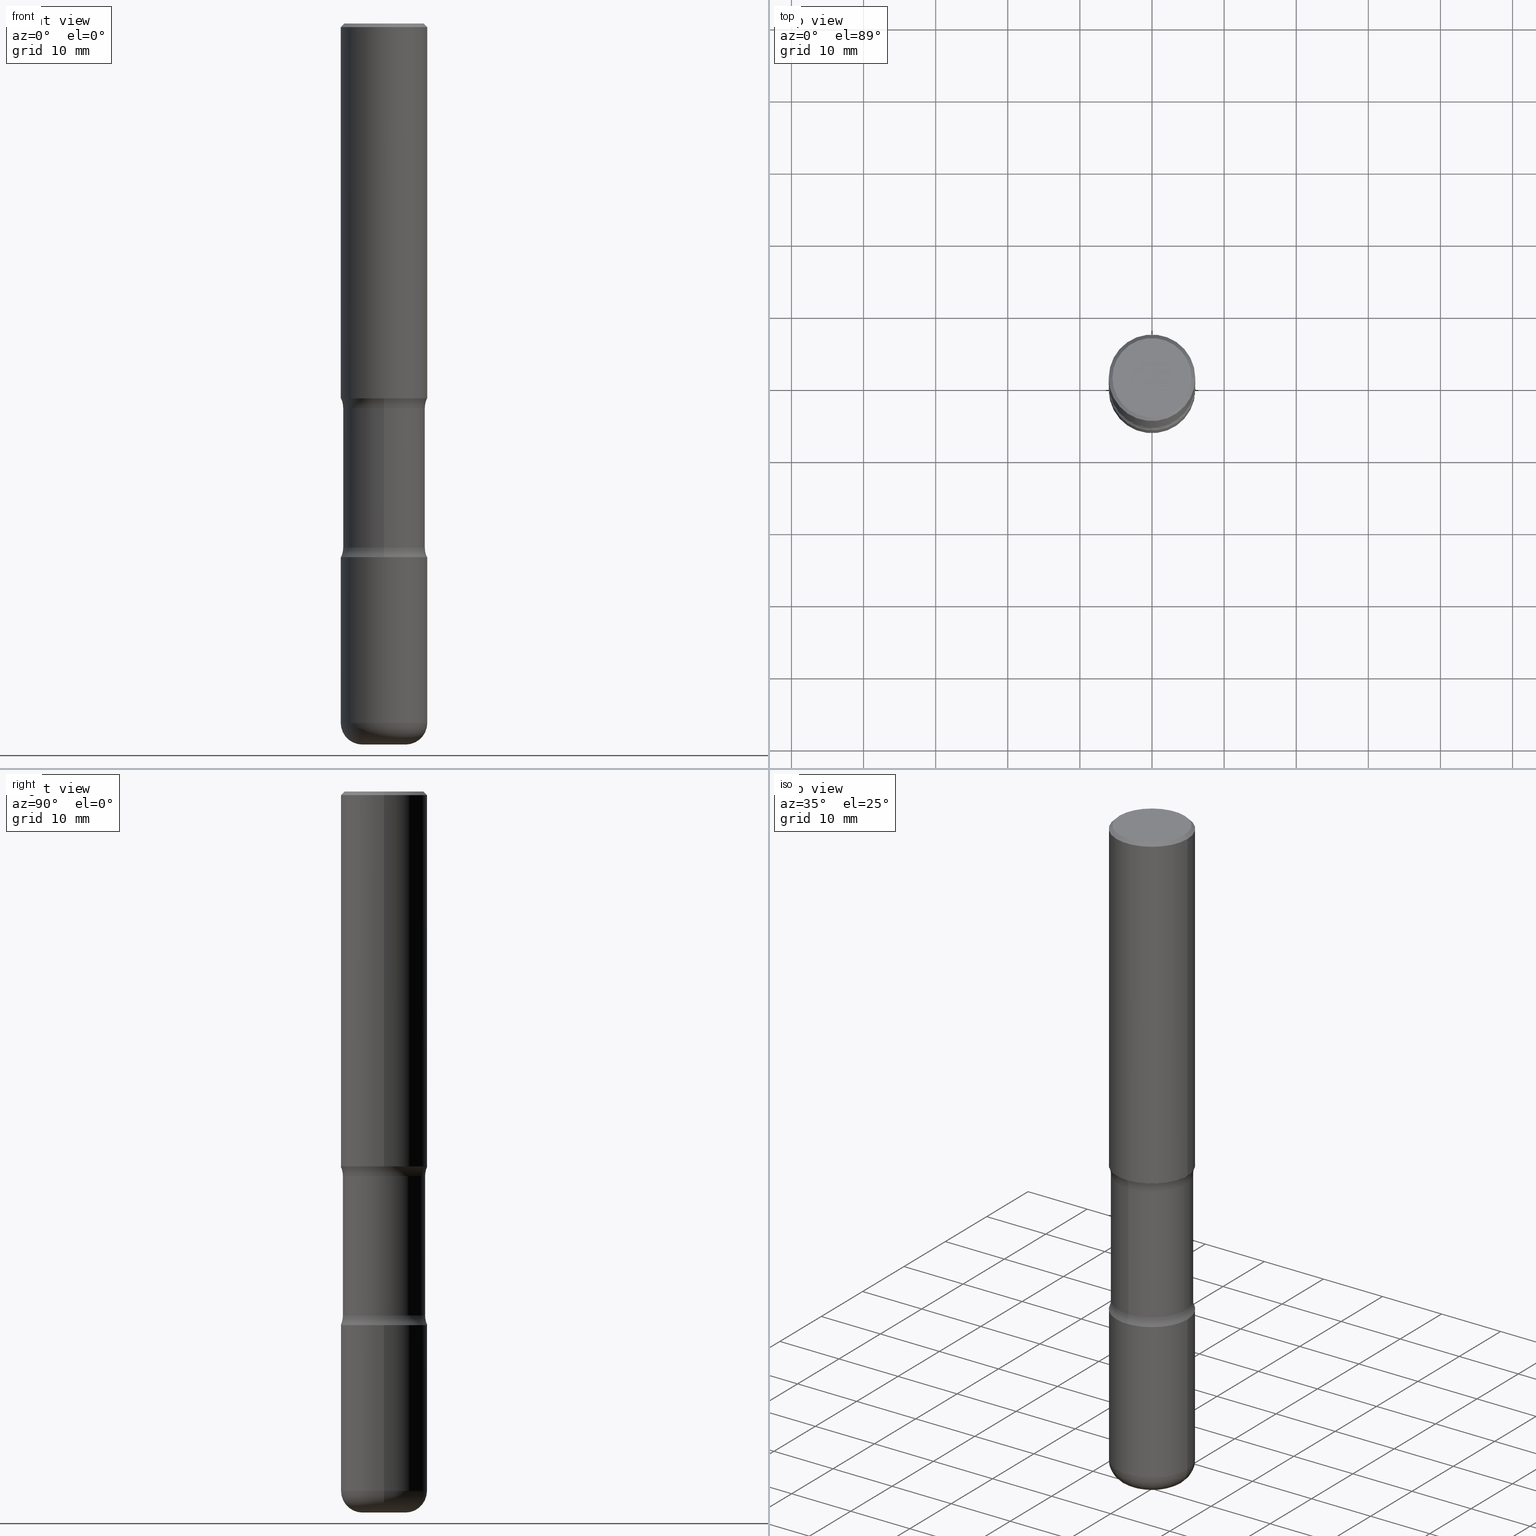
[diagram: canonical four-view strip — front | top / right | iso, engineering-drawing reading convention]
A machine part, canonical four-view strip (front | top / right | iso — engineering-drawing reading convention). The complete STEP part file that produces these views, byte-faithful:
ISO-10303-21;
HEADER;
FILE_DESCRIPTION (( 'STEP AP203' ),
    '1' );
FILE_NAME ('47715.STEP',
    '2024-03-02T07:45:17',
    ( '' ),
    ( '' ),
    'SwSTEP 2.0',
    'SolidWorks 2023',
    '' );
FILE_SCHEMA (( 'CONFIG_CONTROL_DESIGN' ));
ENDSEC;

DATA;
#1 = PERSON_AND_ORGANIZATION_ROLE ( 'classification_officer' ) ;
#2 = CARTESIAN_POINT ( 'NONE',  ( 5.088323202950023588E-29, -7.401163270367792936E-15, -2.100216601173595432 ) ) ;
#3 = COORDINATED_UNIVERSAL_TIME_OFFSET ( 5, 0, .BEHIND. ) ;
#4 = CYLINDRICAL_SURFACE ( 'NONE', #382, 0.2362000000000001598 ) ;
#5 = ADVANCED_FACE ( 'NONE', ( #507 ), #468, .T. ) ;
#6 = VERTEX_POINT ( 'NONE', #469 ) ;
#7 = APPROVAL_STATUS ( 'not_yet_approved' ) ;
#8 = VECTOR ( 'NONE', #560, 39.37007874015748143 ) ;
#9 = CARTESIAN_POINT ( 'NONE',  ( 9.710227154047748282E-29, -1.362793696358492956E-14, -3.937000000000000277 ) ) ;
#10 = VECTOR ( 'NONE', #100, 39.37007874015748143 ) ;
#11 = AXIS2_PLACEMENT_3D ( 'NONE', #131, #94, #520 ) ;
#12 = ORIENTED_EDGE ( 'NONE', *, *, #174, .T. ) ;
#13 = CARTESIAN_POINT ( 'NONE',  ( 4.890937612370289799E-31, -6.982962677686315028E-17, -0.02000000000000006981 ) ) ;
#14 = DIRECTION ( 'NONE',  ( -6.982962677686266711E-15, -1.000000000000000000, 0.000000000000000000 ) ) ;
#15 = DIMENSIONAL_EXPONENTS ( 1.000000000000000000, 0.000000000000000000, 0.000000000000000000, 0.000000000000000000, 0.000000000000000000, 0.000000000000000000, 0.000000000000000000 ) ;
#16 = ORIENTED_EDGE ( 'NONE', *, *, #42, .F. ) ;
#17 = CARTESIAN_POINT ( 'NONE',  ( 1.566976824872848494E-15, 0.2243999999999925499, -2.100216601173596320 ) ) ;
#18 = ORIENTED_EDGE ( 'NONE', *, *, #183, .F. ) ;
#19 = AXIS2_PLACEMENT_3D ( 'NONE', #202, #81, #155 ) ;
#20 = CARTESIAN_POINT ( 'NONE',  ( -0.1181000000000002187, -1.249446711397540556E-14, -3.818899999999998851 ) ) ;
#21 = ADVANCED_FACE ( 'NONE', ( #247 ), #252, .F. ) ;
#22 = ORIENTED_EDGE ( 'NONE', *, *, #238, .T. ) ;
#23 = DIRECTION ( 'NONE',  ( -2.445468806185136597E-29, 3.491481338843145583E-15, 1.000000000000000000 ) ) ;
#24 = ORIENTED_EDGE ( 'NONE', *, *, #271, .F. ) ;
#25 = DIRECTION ( 'NONE',  ( 2.525985086076564115E-29, -3.376177443336566513E-15, -1.000000000000000000 ) ) ;
#26 = ORIENTED_EDGE ( 'NONE', *, *, #494, .T. ) ;
#27 = CIRCLE ( 'NONE', #114, 0.2362000000000002153 ) ;
#28 = EDGE_CURVE ( 'NONE', #104, #309, #499, .T. ) ;
#29 = DIRECTION ( 'NONE',  ( 6.860497997771531562E-15, 1.000000000000000000, 0.000000000000000000 ) ) ;
#30 = ORIENTED_EDGE ( 'NONE', *, *, #340, .T. ) ;
#31 = CC_DESIGN_PERSON_AND_ORGANIZATION_ASSIGNMENT ( #518, #1, ( #158 ) ) ;
#32 = DIRECTION ( 'NONE',  ( 0.000000000000000000, 0.000000000000000000, 1.000000000000000000 ) ) ;
#33 = DIRECTION ( 'NONE',  ( -2.445468806185136597E-29, 3.491481338843145583E-15, 1.000000000000000000 ) ) ;
#34 = APPLICATION_PROTOCOL_DEFINITION ( 'international standard', 'config_control_design', 1994, #375 ) ;
#35 = DIRECTION ( 'NONE',  ( 1.000000000000000000, -6.982962677686266711E-15, 0.000000000000000000 ) ) ;
#36 = VECTOR ( 'NONE', #163, 39.37007874015748143 ) ;
#37 = CARTESIAN_POINT ( 'NONE',  ( 9.339000823940415305E-29, -1.333361808490808613E-14, -3.818899999999998851 ) ) ;
#38 = CARTESIAN_POINT ( 'NONE',  ( -2.397058000421320660E-15, -0.3494000000000072048, -2.100216601173594544 ) ) ;
#39 = DIRECTION ( 'NONE',  ( -2.445468806185136597E-29, 3.491481338843145583E-15, 1.000000000000000000 ) ) ;
#40 = APPROVAL_STATUS ( 'not_yet_approved' ) ;
#41 = DIRECTION ( 'NONE',  ( 1.000000000000000000, -6.982962677686269077E-15, 0.000000000000000000 ) ) ;
#42 = EDGE_CURVE ( 'NONE', #185, #409, #164, .T. ) ;
#43 = AXIS2_PLACEMENT_3D ( 'NONE', #377, #334, #308 ) ;
#44 = CALENDAR_DATE ( 2024, 2, 3 ) ;
#45 = AXIS2_PLACEMENT_3D ( 'NONE', #242, #233, #14 ) ;
#46 = CARTESIAN_POINT ( 'NONE',  ( -1.043851414335219820E-46, 1.490343170380447200E-32, 4.268512490100411279E-18 ) ) ;
#47 = APPROVAL_PERSON_ORGANIZATION ( #176, #386, #385 ) ;
#48 = PRODUCT ( '47715', '47715', '', ( #246 ) ) ;
#49 = ORIENTED_EDGE ( 'NONE', *, *, #276, .T. ) ;
#50 = PLANE ( 'NONE',  #73 ) ;
#51 = ORIENTED_EDGE ( 'NONE', *, *, #174, .F. ) ;
#52 = DATE_AND_TIME ( #266, #292 ) ;
#53 = CARTESIAN_POINT ( 'NONE',  ( 0.2361999999999999933, -1.649375784469496131E-15, 1.151752954443000088E-29 ) ) ;
#54 = PERSON_AND_ORGANIZATION_ROLE ( 'creator' ) ;
#55 = CIRCLE ( 'NONE', #371, 0.2362000000000001321 ) ;
#56 = DIRECTION ( 'NONE',  ( 2.525985086076564115E-29, -3.376177443336566513E-15, -1.000000000000000000 ) ) ;
#57 = AXIS2_PLACEMENT_3D ( 'NONE', #540, #150, #110 ) ;
#58 = LOCAL_TIME ( 2, 45, 17.00000000000000000, #307 ) ;
#59 = ORIENTED_EDGE ( 'NONE', *, *, #340, .F. ) ;
#60 = DIRECTION ( 'NONE',  ( 6.982962677686265922E-15, 1.000000000000000000, -3.652203200085913934E-15 ) ) ;
#61 = CARTESIAN_POINT ( 'NONE',  ( 9.339000823940415305E-29, -1.333361808490808613E-14, -3.818899999999998851 ) ) ;
#62 = EDGE_LOOP ( 'NONE', ( #24, #260, #236, #59 ) ) ;
#63 = DIRECTION ( 'NONE',  ( -1.000000000000000000, 6.982962677686265922E-15, -4.876176775795935793E-29 ) ) ;
#64 = ORIENTED_EDGE ( 'NONE', *, *, #435, .T. ) ;
#65 = CIRCLE ( 'NONE', #500, 0.2362000000000002153 ) ;
#66 = AXIS2_PLACEMENT_3D ( 'NONE', #71, #445, #457 ) ;
#67 = CARTESIAN_POINT ( 'NONE',  ( 0.1181000000000002326, -1.457064992326021168E-14, -3.936999999999998945 ) ) ;
#68 = VERTEX_POINT ( 'NONE', #426 ) ;
#69 = DIRECTION ( 'NONE',  ( 6.982962677686265922E-15, 1.000000000000000000, -3.376177443336566513E-15 ) ) ;
#70 = ORIENTED_EDGE ( 'NONE', *, *, #84, .F. ) ;
#71 = CARTESIAN_POINT ( 'NONE',  ( 5.070539682259229331E-29, -7.426630284172150130E-15, -2.100216601173595432 ) ) ;
#72 = ORIENTED_EDGE ( 'NONE', *, *, #111, .F. ) ;
#73 = AXIS2_PLACEMENT_3D ( 'NONE', #169, #339, #228 ) ;
#74 = DIRECTION ( 'NONE',  ( 2.445468806185136597E-29, -3.491481338843145583E-15, -1.000000000000000000 ) ) ;
#75 = CARTESIAN_POINT ( 'NONE',  ( 0.000000000000000000, 0.000000000000000000, 0.000000000000000000 ) ) ;
#76 = CYLINDRICAL_SURFACE ( 'NONE', #121, 0.2361999999999999933 ) ;
#77 = PLANE ( 'NONE',  #165 ) ;
#78 = ADVANCED_FACE ( 'NONE', ( #124 ), #76, .T. ) ;
#79 = FACE_OUTER_BOUND ( 'NONE', #439, .T. ) ;
#80 = AXIS2_PLACEMENT_3D ( 'NONE', #38, #548, #29 ) ;
#81 = DIRECTION ( 'NONE',  ( -2.445468806185136597E-29, 3.491481338843145583E-15, 1.000000000000000000 ) ) ;
#82 = CARTESIAN_POINT ( 'NONE',  ( 5.006363740022212241E-29, -7.147760596879688202E-15, -2.047200000000000131 ) ) ;
#83 = CARTESIAN_POINT ( 'NONE',  ( 4.890937612370289799E-31, -6.982962677686315028E-17, -0.02000000000000006981 ) ) ;
#84 = EDGE_CURVE ( 'NONE', #6, #327, #553, .T. ) ;
#85 = DATE_TIME_ROLE ( 'classification_date' ) ;
#86 = CARTESIAN_POINT ( 'NONE',  ( 1.566976824872894642E-15, 0.2243999999999863049, -3.937000000000000721 ) ) ;
#87 = PERSON_AND_ORGANIZATION ( #120, #149 ) ;
#88 = CIRCLE ( 'NONE', #11, 0.2362000000000001321 ) ;
#89 = DIRECTION ( 'NONE',  ( 2.525985086076564115E-29, -3.376177443336566513E-15, -1.000000000000000000 ) ) ;
#90 = CALENDAR_DATE ( 2024, 2, 3 ) ;
#91 = LINE ( 'NONE', #53, #383 ) ;
#92 = VERTEX_POINT ( 'NONE', #510 ) ;
#93 = SECURITY_CLASSIFICATION_LEVEL ( 'unclassified' ) ;
#94 = DIRECTION ( 'NONE',  ( -2.445468806185136597E-29, 3.491481338843145583E-15, 1.000000000000000000 ) ) ;
#95 = EDGE_CURVE ( 'NONE', #6, #239, #65, .T. ) ;
#96 = CLOSED_SHELL ( 'NONE', ( #374, #324, #143, #488, #289, #78 ) ) ;
#97 = FACE_OUTER_BOUND ( 'NONE', #278, .T. ) ;
#98 = EDGE_CURVE ( 'NONE', #327, #544, #55, .T. ) ;
#99 = VERTEX_POINT ( 'NONE', #113 ) ;
#100 = DIRECTION ( 'NONE',  ( 2.525985086076564115E-29, -3.376177443336566513E-15, -1.000000000000000000 ) ) ;
#101 = VERTEX_POINT ( 'NONE', #285 ) ;
#102 = ADVANCED_FACE ( 'NONE', ( #473 ), #490, .F. ) ;
#103 = CARTESIAN_POINT ( 'NONE',  ( 1.509716530915769534E-15, 0.2161999999999998368, -7.527240092128373149E-16 ) ) ;
#104 = VERTEX_POINT ( 'NONE', #248 ) ;
#105 = CARTESIAN_POINT ( 'NONE',  ( -1.539495750699834052E-15, -0.2244000000000135608, -3.936999999999999389 ) ) ;
#106 = VERTEX_POINT ( 'NONE', #379 ) ;
#107 = AXIS2_PLACEMENT_3D ( 'NONE', #108, #191, #536 ) ;
#108 = CARTESIAN_POINT ( 'NONE',  ( 0.1181000000000002187, -1.415830597714283439E-14, -3.818899999999998851 ) ) ;
#109 = VERTEX_POINT ( 'NONE', #160 ) ;
#110 = DIRECTION ( 'NONE',  ( -1.000000000000000000, 6.982962677686265922E-15, -4.876176775795935793E-29 ) ) ;
#111 = EDGE_CURVE ( 'NONE', #316, #201, #175, .T. ) ;
#112 = ORIENTED_EDGE ( 'NONE', *, *, #347, .F. ) ;
#113 = CARTESIAN_POINT ( 'NONE',  ( -1.579972688886734072E-15, -0.2244000000000073713, -2.100216601173594544 ) ) ;
#114 = AXIS2_PLACEMENT_3D ( 'NONE', #61, #495, #492 ) ;
#115 = CYLINDRICAL_SURFACE ( 'NONE', #516, 0.2362000000000001598 ) ;
#116 = CARTESIAN_POINT ( 'NONE',  ( 7.124628819939777829E-29, -1.017208173258562247E-14, -2.913400000000000212 ) ) ;
#117 = DIRECTION ( 'NONE',  ( -2.445468806185136597E-29, 3.491481338843145583E-15, 1.000000000000000000 ) ) ;
#118 = ORIENTED_EDGE ( 'NONE', *, *, #125, .F. ) ;
#119 = DIRECTION ( 'NONE',  ( 6.982962677686265922E-15, 1.000000000000000000, -3.376177443336566513E-15 ) ) ;
#120 = PERSON ( 'UNSPECIFIED', 'UNSPECIFIED', 'UNSPECIFIED', ('UNSPECIFIED'), ('UNSPECIFIED'), ('UNSPECIFIED') ) ;
#121 = AXIS2_PLACEMENT_3D ( 'NONE', #336, #33, #329 ) ;
#122 = CONICAL_SURFACE ( 'NONE', #226, 0.2361999999999998823, 0.7853981633974479459 ) ;
#123 = FACE_OUTER_BOUND ( 'NONE', #145, .T. ) ;
#124 = FACE_OUTER_BOUND ( 'NONE', #269, .T. ) ;
#125 = EDGE_CURVE ( 'NONE', #68, #201, #295, .T. ) ;
#126 = DATE_AND_TIME ( #170, #227 ) ;
#127 = CARTESIAN_POINT ( 'NONE',  ( 5.070539682259229331E-29, -7.426630284172150130E-15, -2.100216601173595432 ) ) ;
#128 = LINE ( 'NONE', #300, #362 ) ;
#129 = ORIENTED_EDGE ( 'NONE', *, *, #533, .T. ) ;
#130 = AXIS2_PLACEMENT_3D ( 'NONE', #211, #465, #372 ) ;
#131 = CARTESIAN_POINT ( 'NONE',  ( 5.006363740022212241E-29, -7.147760596879688202E-15, -2.047200000000000131 ) ) ;
#132 = ORIENTED_EDGE ( 'NONE', *, *, #444, .T. ) ;
#133 = APPROVAL_DATE_TIME ( #126, #386 ) ;
#134 = DIRECTION ( 'NONE',  ( 2.525985086076564115E-29, -3.376177443336566513E-15, -1.000000000000000000 ) ) ;
#135 = PERSON_AND_ORGANIZATION_ROLE ( 'creator' ) ;
#136 = DESIGN_CONTEXT ( 'detailed design', #375, 'design' ) ;
#137 = LINE ( 'NONE', #195, #424 ) ;
#138 = AXIS2_PLACEMENT_3D ( 'NONE', #46, #172, #523 ) ;
#139 = EDGE_CURVE ( 'NONE', #309, #185, #344, .T. ) ;
#140 = APPROVAL_PERSON_ORGANIZATION ( #216, #505, #180 ) ;
#141 = FACE_OUTER_BOUND ( 'NONE', #496, .T. ) ;
#142 = ORIENTED_EDGE ( 'NONE', *, *, #221, .T. ) ;
#143 = ADVANCED_FACE ( 'NONE', ( #79 ), #440, .T. ) ;
#144 = PLANE ( 'NONE',  #261 ) ;
#145 = EDGE_LOOP ( 'NONE', ( #273, #151 ) ) ;
#146 = DIRECTION ( 'NONE',  ( 2.525985086076564115E-29, -3.376177443336566513E-15, -1.000000000000000000 ) ) ;
#147 = EDGE_LOOP ( 'NONE', ( #232, #197 ) ) ;
#148 = AXIS2_PLACEMENT_3D ( 'NONE', #366, #208, #370 ) ;
#149 = ORGANIZATION ( 'UNSPECIFIED', 'UNSPECIFIED', '' ) ;
#150 = DIRECTION ( 'NONE',  ( 2.438088387897960049E-29, -3.491481338843145188E-15, -1.000000000000000000 ) ) ;
#151 = ORIENTED_EDGE ( 'NONE', *, *, #533, .F. ) ;
#152 = DIRECTION ( 'NONE',  ( -6.982962677686265922E-15, -1.000000000000000000, 3.376177443336566513E-15 ) ) ;
#153 = MANIFOLD_SOLID_BREP ( 'Body-Move/Copy2[1]', #206 ) ;
#154 = EDGE_LOOP ( 'NONE', ( #400, #179 ) ) ;
#155 = DIRECTION ( 'NONE',  ( 1.000000000000000000, -6.982962677686266711E-15, 4.876217060660159599E-29 ) ) ;
#156 = DIRECTION ( 'NONE',  ( 2.525985086076564115E-29, -3.376177443336566513E-15, -1.000000000000000000 ) ) ;
#157 = TOROIDAL_SURFACE ( 'NONE', #501, 0.1181000000000002187, 0.1180999999999999966 ) ;
#158 = SECURITY_CLASSIFICATION ( '', '', #93 ) ;
#159 = CARTESIAN_POINT ( 'NONE',  ( 4.936620538380257512E-29, -7.247636831167487464E-15, -2.047200000000000131 ) ) ;
#160 = CARTESIAN_POINT ( 'NONE',  ( 1.649375784469546815E-15, 0.2361999999999930266, -2.047200000000001019 ) ) ;
#161 = DIRECTION ( 'NONE',  ( 1.000000000000000000, -6.860497997771530774E-15, 4.842210945089756248E-29 ) ) ;
#162 = PERSON_AND_ORGANIZATION ( #120, #149 ) ;
#163 = DIRECTION ( 'NONE',  ( -2.445468806185136877E-29, 3.491481338843145188E-15, 1.000000000000000000 ) ) ;
#164 = CIRCLE ( 'NONE', #558, 0.2243999999999999606 ) ;
#165 = AXIS2_PLACEMENT_3D ( 'NONE', #376, #287, #152 ) ;
#166 = MANIFOLD_SOLID_BREP ( 'Body-Move/Copy2[2]', #96 ) ;
#167 = COORDINATED_UNIVERSAL_TIME_OFFSET ( 5, 0, .BEHIND. ) ;
#168 = CC_DESIGN_DATE_AND_TIME_ASSIGNMENT ( #338, #395, ( #188 ) ) ;
#169 = CARTESIAN_POINT ( 'NONE',  ( 5.006363740022212241E-29, -7.147760596879688202E-15, -2.047200000000000131 ) ) ;
#170 = CALENDAR_DATE ( 2024, 2, 3 ) ;
#171 = FACE_OUTER_BOUND ( 'NONE', #365, .T. ) ;
#172 = DIRECTION ( 'NONE',  ( -2.445468806185136597E-29, 3.491481338843145583E-15, 1.000000000000000000 ) ) ;
#173 = ORIENTED_EDGE ( 'NONE', *, *, #221, .F. ) ;
#174 = EDGE_CURVE ( 'NONE', #409, #185, #251, .T. ) ;
#175 = CIRCLE ( 'NONE', #450, 0.2361999999999998823 ) ;
#176 = PERSON_AND_ORGANIZATION ( #120, #149 ) ;
#177 = AXIS2_PLACEMENT_3D ( 'NONE', #20, #532, #184 ) ;
#178 = CARTESIAN_POINT ( 'NONE',  ( 4.936620538380257512E-29, -7.247636831167487464E-15, -2.047200000000000131 ) ) ;
#179 = ORIENTED_EDGE ( 'NONE', *, *, #522, .T. ) ;
#180 = APPROVAL_ROLE ( '' ) ;
#181 = DIRECTION ( 'NONE',  ( 2.445468806185136597E-29, -3.491481338843145583E-15, -1.000000000000000000 ) ) ;
#182 = ORIENTED_EDGE ( 'NONE', *, *, #393, .F. ) ;
#183 = EDGE_CURVE ( 'NONE', #458, #101, #243, .T. ) ;
#184 = DIRECTION ( 'NONE',  ( -1.000000000000000000, 7.105427357601005014E-15, 0.000000000000000000 ) ) ;
#185 = VERTEX_POINT ( 'NONE', #306 ) ;
#186 = CIRCLE ( 'NONE', #535, 0.2362000000000002431 ) ;
#187 = DIRECTION ( 'NONE',  ( -2.445468806185136597E-29, 3.491481338843145583E-15, 1.000000000000000000 ) ) ;
#188 = PRODUCT_DEFINITION ( 'UNKNOWN', '', #364, #136 ) ;
#189 = CIRCLE ( 'NONE', #19, 0.2161999999999998368 ) ;
#190 = ORIENTED_EDGE ( 'NONE', *, *, #317, .T. ) ;
#191 = DIRECTION ( 'NONE',  ( -6.982962677686266711E-15, -1.000000000000000000, 3.491481338843145583E-15 ) ) ;
#192 = ORIENTED_EDGE ( 'NONE', *, *, #508, .F. ) ;
#193 = DIRECTION ( 'NONE',  ( -2.445468806185136597E-29, 3.491481338843145583E-15, 1.000000000000000000 ) ) ;
#194 = ORIENTED_EDGE ( 'NONE', *, *, #245, .F. ) ;
#195 = CARTESIAN_POINT ( 'NONE',  ( 0.2361999999999998823, -1.690279253850498179E-15, -0.02000000000000006981 ) ) ;
#196 = AXIS2_PLACEMENT_3D ( 'NONE', #83, #74, #250 ) ;
#197 = ORIENTED_EDGE ( 'NONE', *, *, #268, .T. ) ;
#198 = AXIS2_PLACEMENT_3D ( 'NONE', #82, #331, #205 ) ;
#199 = LOCAL_TIME ( 2, 45, 17.00000000000000000, #3 ) ;
#200 = DIRECTION ( 'NONE',  ( -6.982962677686264344E-15, -1.000000000000000000, 0.000000000000000000 ) ) ;
#201 = VERTEX_POINT ( 'NONE', #487 ) ;
#202 = CARTESIAN_POINT ( 'NONE',  ( -1.043851414335219820E-46, 1.490343170380447200E-32, 4.268512490100411279E-18 ) ) ;
#203 = ADVANCED_FACE ( 'NONE', ( #97 ), #4, .T. ) ;
#204 = CARTESIAN_POINT ( 'NONE',  ( 6.990709676060807691E-29, -9.993088279580958225E-15, -2.860383398826405354 ) ) ;
#205 = DIRECTION ( 'NONE',  ( 1.000000000000000000, -6.982962677686269077E-15, 0.000000000000000000 ) ) ;
#206 = CLOSED_SHELL ( 'NONE', ( #203, #455, #410, #5, #546, #418 ) ) ;
#207 = AXIS2_PLACEMENT_3D ( 'NONE', #262, #396, #430 ) ;
#208 = DIRECTION ( 'NONE',  ( 2.525985086076564115E-29, -3.376177443336566513E-15, -1.000000000000000000 ) ) ;
#209 = DIRECTION ( 'NONE',  ( -2.445468806185136597E-29, 3.491481338843145583E-15, 1.000000000000000000 ) ) ;
#210 = PERSON_AND_ORGANIZATION ( #120, #149 ) ;
#211 = CARTESIAN_POINT ( 'NONE',  ( 5.088323202950023588E-29, -7.401163270367792936E-15, -2.100216601173595432 ) ) ;
#212 = ADVANCED_FACE ( 'NONE', ( #171 ), #341, .T. ) ;
#213 = CARTESIAN_POINT ( 'NONE',  ( 6.990709676060807691E-29, -9.993088279580958225E-15, -2.860383398826405354 ) ) ;
#214 = AXIS2_PLACEMENT_3D ( 'NONE', #304, #519, #259 ) ;
#215 = CIRCLE ( 'NONE', #45, 0.1250000000000000000 ) ;
#216 = PERSON_AND_ORGANIZATION ( #120, #149 ) ;
#217 = DIRECTION ( 'NONE',  ( -1.000000000000000000, 6.982962677686267499E-15, 0.000000000000000000 ) ) ;
#218 = ORIENTED_EDGE ( 'NONE', *, *, #479, .T. ) ;
#219 = PERSON_AND_ORGANIZATION_ROLE ( 'design_supplier' ) ;
#220 = CYLINDRICAL_SURFACE ( 'NONE', #394, 0.2243999999999999329 ) ;
#221 = EDGE_CURVE ( 'NONE', #485, #99, #460, .T. ) ;
#222 = ORIENTED_EDGE ( 'NONE', *, *, #98, .T. ) ;
#223 = FACE_OUTER_BOUND ( 'NONE', #407, .T. ) ;
#224 = ORIENTED_EDGE ( 'NONE', *, *, #245, .T. ) ;
#225 = AXIS2_PLACEMENT_3D ( 'NONE', #513, #416, #119 ) ;
#226 = AXIS2_PLACEMENT_3D ( 'NONE', #13, #181, #217 ) ;
#227 = LOCAL_TIME ( 2, 45, 17.00000000000000000, #296 ) ;
#228 = DIRECTION ( 'NONE',  ( 1.000000000000000000, -6.982962677686265922E-15, 4.876176775795935793E-29 ) ) ;
#229 = ADVANCED_FACE ( 'NONE', ( #342 ), #220, .T. ) ;
#230 = LINE ( 'NONE', #86, #353 ) ;
#231 = CARTESIAN_POINT ( 'NONE',  ( 9.339000823940415305E-29, -1.333361808490808613E-14, -3.818899999999998851 ) ) ;
#232 = ORIENTED_EDGE ( 'NONE', *, *, #28, .T. ) ;
#233 = DIRECTION ( 'NONE',  ( -1.000000000000000000, 6.982962677686265922E-15, -4.883557194083112340E-29 ) ) ;
#234 = CIRCLE ( 'NONE', #80, 0.1249999999999999029 ) ;
#235 = CC_DESIGN_APPROVAL ( #505, ( #364 ) ) ;
#236 = ORIENTED_EDGE ( 'NONE', *, *, #84, .T. ) ;
#237 = DIRECTION ( 'NONE',  ( -1.000000000000000000, 6.982962677686265922E-15, -4.876176775795935793E-29 ) ) ;
#238 = EDGE_CURVE ( 'NONE', #109, #325, #186, .T. ) ;
#239 = VERTEX_POINT ( 'NONE', #484 ) ;
#240 = FACE_OUTER_BOUND ( 'NONE', #482, .T. ) ;
#241 = EDGE_LOOP ( 'NONE', ( #541, #218, #275, #263 ) ) ;
#242 = CARTESIAN_POINT ( 'NONE',  ( 2.439847159583651160E-15, 0.3493999999999899964, -2.860383398826406243 ) ) ;
#243 = CIRCLE ( 'NONE', #43, 0.1181000000000002326 ) ;
#244 = EDGE_LOOP ( 'NONE', ( #142, #443, #51, #506 ) ) ;
#245 = EDGE_CURVE ( 'NONE', #280, #68, #88, .T. ) ;
#246 = MECHANICAL_CONTEXT ( 'NONE', #315, 'mechanical' ) ;
#247 = FACE_OUTER_BOUND ( 'NONE', #498, .T. ) ;
#248 = CARTESIAN_POINT ( 'NONE',  ( 1.649375784469567917E-15, 0.2361999999999899458, -2.913400000000000656 ) ) ;
#249 =( CONVERSION_BASED_UNIT ( 'INCH', #466 ) LENGTH_UNIT ( ) NAMED_UNIT ( #15 ) );
#250 = DIRECTION ( 'NONE',  ( -1.000000000000000000, 6.982962677686267499E-15, 0.000000000000000000 ) ) ;
#251 = CIRCLE ( 'NONE', #514, 0.2243999999999999606 ) ;
#252 = TOROIDAL_SURFACE ( 'NONE', #225, 0.3493999999999999884, 0.1250000000000000000 ) ;
#253 = AXIS2_PLACEMENT_3D ( 'NONE', #272, #399, #314 ) ;
#254 = DIRECTION ( 'NONE',  ( 1.000000000000000000, -6.982962677686266711E-15, 4.876176775795936353E-29 ) ) ;
#255 = CARTESIAN_POINT ( 'NONE',  ( 7.124628819939777829E-29, -1.017208173258562247E-14, -2.913400000000000212 ) ) ;
#256 = EDGE_CURVE ( 'NONE', #106, #92, #320, .T. ) ;
#257 = DATE_AND_TIME ( #427, #199 ) ;
#258 = DIRECTION ( 'NONE',  ( 2.525985086076564115E-29, -3.376177443336566513E-15, -1.000000000000000000 ) ) ;
#259 = DIRECTION ( 'NONE',  ( 6.982962677686265922E-15, 1.000000000000000000, -2.434802133390609815E-15 ) ) ;
#260 = ORIENTED_EDGE ( 'NONE', *, *, #464, .T. ) ;
#261 = AXIS2_PLACEMENT_3D ( 'NONE', #319, #356, #63 ) ;
#262 = CARTESIAN_POINT ( 'NONE',  ( 7.124628819939777829E-29, -1.017208173258562247E-14, -2.913400000000000212 ) ) ;
#263 = ORIENTED_EDGE ( 'NONE', *, *, #464, .F. ) ;
#264 = DIRECTION ( 'NONE',  ( 6.982962677686265922E-15, 1.000000000000000000, -3.469747663417773452E-15 ) ) ;
#265 = ORIENTED_EDGE ( 'NONE', *, *, #298, .T. ) ;
#266 = CALENDAR_DATE ( 2024, 2, 3 ) ;
#267 = CARTESIAN_POINT ( 'NONE',  ( 0.000000000000000000, 0.000000000000000000, 0.000000000000000000 ) ) ;
#268 = EDGE_CURVE ( 'NONE', #309, #104, #310, .T. ) ;
#269 = EDGE_LOOP ( 'NONE', ( #118, #355, #190, #112 ) ) ;
#270 = DIRECTION ( 'NONE',  ( -2.445468806185136877E-29, 3.491481338843145188E-15, 1.000000000000000000 ) ) ;
#271 = EDGE_CURVE ( 'NONE', #239, #544, #437, .T. ) ;
#272 = CARTESIAN_POINT ( 'NONE',  ( 9.627810689950880306E-29, -1.374596203102546026E-14, -3.936999999999998945 ) ) ;
#273 = ORIENTED_EDGE ( 'NONE', *, *, #238, .F. ) ;
#274 = FACE_OUTER_BOUND ( 'NONE', #392, .T. ) ;
#275 = ORIENTED_EDGE ( 'NONE', *, *, #358, .T. ) ;
#276 = EDGE_CURVE ( 'NONE', #485, #409, #230, .T. ) ;
#277 = PLANE ( 'NONE',  #441 ) ;
#278 = EDGE_LOOP ( 'NONE', ( #343, #446, #351, #70 ) ) ;
#279 = CARTESIAN_POINT ( 'NONE',  ( 4.890937612370289799E-31, -6.982962677686315028E-17, -0.02000000000000006981 ) ) ;
#280 = VERTEX_POINT ( 'NONE', #297 ) ;
#281 = CARTESIAN_POINT ( 'NONE',  ( 0.000000000000000000, 0.000000000000000000, 0.000000000000000000 ) ) ;
#282 = ORIENTED_EDGE ( 'NONE', *, *, #508, .T. ) ;
#283 = AXIS2_PLACEMENT_3D ( 'NONE', #279, #323, #312 ) ;
#284 = PRODUCT_RELATED_PRODUCT_CATEGORY ( 'detail', '', ( #48 ) ) ;
#285 = CARTESIAN_POINT ( 'NONE',  ( -0.1181000000000002326, -1.228106360156775550E-14, -3.936999999999998945 ) ) ;
#286 = UNCERTAINTY_MEASURE_WITH_UNIT (LENGTH_MEASURE( 1.000000000000000082E-05 ), #249, 'distance_accuracy_value', 'NONE');
#287 = DIRECTION ( 'NONE',  ( -2.525985086076564115E-29, 3.376177443336566513E-15, 1.000000000000000000 ) ) ;
#288 = DIRECTION ( 'NONE',  ( 1.000000000000000000, -6.982962677686267499E-15, 0.000000000000000000 ) ) ;
#289 = ADVANCED_FACE ( 'NONE', ( #397 ), #50, .F. ) ;
#290 = DIRECTION ( 'NONE',  ( 6.982962677686265922E-15, 1.000000000000000000, -2.434802133390609421E-15 ) ) ;
#291 = AXIS2_PLACEMENT_3D ( 'NONE', #2, #25, #69 ) ;
#292 = LOCAL_TIME ( 2, 45, 17.00000000000000000, #167 ) ;
#293 = DIRECTION ( 'NONE',  ( 6.982962677686265922E-15, 1.000000000000000000, -3.469747663417773452E-15 ) ) ;
#294 = CC_DESIGN_PERSON_AND_ORGANIZATION_ASSIGNMENT ( #529, #219, ( #364 ) ) ;
#295 = LINE ( 'NONE', #369, #36 ) ;
#296 = COORDINATED_UNIVERSAL_TIME_OFFSET ( 5, 0, .BEHIND. ) ;
#297 = CARTESIAN_POINT ( 'NONE',  ( 0.2362000000000001321, -8.797136381349186305E-15, -2.047200000000000131 ) ) ;
#298 = EDGE_CURVE ( 'NONE', #106, #201, #128, .T. ) ;
#299 = COORDINATED_UNIVERSAL_TIME_OFFSET ( 5, 0, .BEHIND. ) ;
#300 = CARTESIAN_POINT ( 'NONE',  ( -0.2361999999999998823, 1.579546157692632438E-15, -0.02000000000000006981 ) ) ;
#301 = ORIENTED_EDGE ( 'NONE', *, *, #380, .F. ) ;
#302 = CLOSED_SHELL ( 'NONE', ( #229, #378, #102, #333, #527, #555, #21, #212 ) ) ;
#303 = CIRCLE ( 'NONE', #198, 0.2362000000000001321 ) ;
#304 = CARTESIAN_POINT ( 'NONE',  ( 9.710227154047748282E-29, -1.362793696358492956E-14, -3.937000000000000277 ) ) ;
#305 = APPROVAL_DATE_TIME ( #52, #414 ) ;
#306 = CARTESIAN_POINT ( 'NONE',  ( -1.579972688886713168E-15, -0.2244000000000099804, -2.860383398826404466 ) ) ;
#307 = COORDINATED_UNIVERSAL_TIME_OFFSET ( 5, 0, .BEHIND. ) ;
#308 = DIRECTION ( 'NONE',  ( 1.000000000000000000, -6.982962677686275388E-15, 0.000000000000000000 ) ) ;
#309 = VERTEX_POINT ( 'NONE', #389 ) ;
#310 = CIRCLE ( 'NONE', #207, 0.2362000000000001321 ) ;
#311 = EDGE_LOOP ( 'NONE', ( #194, #549 ) ) ;
#312 = DIRECTION ( 'NONE',  ( 1.000000000000000000, -6.982962677686267499E-15, 0.000000000000000000 ) ) ;
#313 = ORIENTED_EDGE ( 'NONE', *, *, #95, .F. ) ;
#314 = DIRECTION ( 'NONE',  ( 1.000000000000000000, -6.982962677686275388E-15, 0.000000000000000000 ) ) ;
#315 = APPLICATION_CONTEXT ( 'configuration controlled 3d designs of mechanical parts and assemblies' ) ;
#316 = VERTEX_POINT ( 'NONE', #433 ) ;
#317 = EDGE_CURVE ( 'NONE', #280, #316, #91, .T. ) ;
#318 = AXIS2_PLACEMENT_3D ( 'NONE', #415, #551, #200 ) ;
#319 = CARTESIAN_POINT ( 'NONE',  ( 7.124628819939777829E-29, -1.017208173258562247E-14, -2.913400000000000212 ) ) ;
#320 = CIRCLE ( 'NONE', #138, 0.2161999999999998368 ) ;
#321 = ORIENTED_EDGE ( 'NONE', *, *, #422, .F. ) ;
#322 = ADVANCED_BREP_SHAPE_REPRESENTATION ( '47715', ( #153, #166, #531, #432 ), #411 ) ;
#323 = DIRECTION ( 'NONE',  ( -2.445468806185136597E-29, 3.491481338843145583E-15, 1.000000000000000000 ) ) ;
#324 = ADVANCED_FACE ( 'NONE', ( #223 ), #122, .T. ) ;
#325 = VERTEX_POINT ( 'NONE', #475 ) ;
#326 =( LENGTH_UNIT ( ) NAMED_UNIT ( * ) SI_UNIT ( $, .METRE. ) );
#327 = VERTEX_POINT ( 'NONE', #348 ) ;
#328 = PLANE ( 'NONE',  #148 ) ;
#329 = DIRECTION ( 'NONE',  ( 1.000000000000000000, -6.982962677686266711E-15, 4.876176775795936353E-29 ) ) ;
#330 = AXIS2_PLACEMENT_3D ( 'NONE', #159, #545, #293 ) ;
#331 = DIRECTION ( 'NONE',  ( -2.445468806185136597E-29, 3.491481338843145583E-15, 1.000000000000000000 ) ) ;
#332 = CARTESIAN_POINT ( 'NONE',  ( -2.397058000421302516E-15, -0.3494000000000099249, -2.860383398826404022 ) ) ;
#333 = ADVANCED_FACE ( 'NONE', ( #530 ), #525, .F. ) ;
#334 = DIRECTION ( 'NONE',  ( -2.445468806185136597E-29, 3.491481338843145583E-15, 1.000000000000000000 ) ) ;
#335 = APPROVAL_STATUS ( 'not_yet_approved' ) ;
#336 = CARTESIAN_POINT ( 'NONE',  ( 0.000000000000000000, 0.000000000000000000, 0.000000000000000000 ) ) ;
#337 = CIRCLE ( 'NONE', #253, 0.1181000000000002326 ) ;
#338 = DATE_AND_TIME ( #44, #58 ) ;
#339 = DIRECTION ( 'NONE',  ( -2.438088387897960049E-29, 3.491481338843145188E-15, 1.000000000000000000 ) ) ;
#340 = EDGE_CURVE ( 'NONE', #544, #327, #542, .T. ) ;
#341 = CYLINDRICAL_SURFACE ( 'NONE', #214, 0.2243999999999999329 ) ;
#342 = FACE_OUTER_BOUND ( 'NONE', #244, .T. ) ;
#343 = ORIENTED_EDGE ( 'NONE', *, *, #95, .T. ) ;
#344 = CIRCLE ( 'NONE', #421, 0.1250000000000000000 ) ;
#345 = AXIS2_PLACEMENT_3D ( 'NONE', #387, #23, #502 ) ;
#346 = DIRECTION ( 'NONE',  ( -2.445468806185136597E-29, 3.491481338843145583E-15, 1.000000000000000000 ) ) ;
#347 = EDGE_CURVE ( 'NONE', #201, #316, #401, .T. ) ;
#348 = CARTESIAN_POINT ( 'NONE',  ( 0.2362000000000001321, -1.182145751705511899E-14, -2.913400000000000212 ) ) ;
#349 = ORIENTED_EDGE ( 'NONE', *, *, #42, .T. ) ;
#350 = FACE_OUTER_BOUND ( 'NONE', #503, .T. ) ;
#351 = ORIENTED_EDGE ( 'NONE', *, *, #98, .F. ) ;
#352 = AXIS2_PLACEMENT_3D ( 'NONE', #127, #89, #60 ) ;
#353 = VECTOR ( 'NONE', #56, 39.37007874015748143 ) ;
#354 = LINE ( 'NONE', #105, #10 ) ;
#355 = ORIENTED_EDGE ( 'NONE', *, *, #539, .T. ) ;
#356 = DIRECTION ( 'NONE',  ( 2.438088387897960049E-29, -3.491481338843145188E-15, -1.000000000000000000 ) ) ;
#357 = ORIENTED_EDGE ( 'NONE', *, *, #125, .T. ) ;
#358 = EDGE_CURVE ( 'NONE', #458, #6, #491, .T. ) ;
#359 = DIRECTION ( 'NONE',  ( 1.000000000000000000, -6.982962677686266711E-15, 4.883557194083113462E-29 ) ) ;
#360 = ORIENTED_EDGE ( 'NONE', *, *, #298, .F. ) ;
#361 = AXIS2_PLACEMENT_3D ( 'NONE', #37, #209, #428 ) ;
#362 = VECTOR ( 'NONE', #474, 39.37007874015748143 ) ;
#363 = DIRECTION ( 'NONE',  ( 0.7071067811865472397, -7.319954787623254468E-15, -0.7071067811865477948 ) ) ;
#364 = PRODUCT_DEFINITION_FORMATION_WITH_SPECIFIED_SOURCE ( 'ANY', '', #48, .NOT_KNOWN. ) ;
#365 = EDGE_LOOP ( 'NONE', ( #301, #477, #49, #16 ) ) ;
#366 = CARTESIAN_POINT ( 'NONE',  ( 5.006363740022212241E-29, -7.147760596879688202E-15, -2.047200000000000131 ) ) ;
#367 = ORIENTED_EDGE ( 'NONE', *, *, #139, .T. ) ;
#368 = DIRECTION ( 'NONE',  ( 1.000000000000000000, 0.000000000000000000, 0.000000000000000000 ) ) ;
#369 = CARTESIAN_POINT ( 'NONE',  ( -0.2361999999999999933, 1.678301941865356591E-15, -1.161852468318208757E-29 ) ) ;
#370 = DIRECTION ( 'NONE',  ( 6.982962677686265922E-15, 1.000000000000000000, -3.376177443336566513E-15 ) ) ;
#371 = AXIS2_PLACEMENT_3D ( 'NONE', #116, #517, #41 ) ;
#372 = DIRECTION ( 'NONE',  ( 6.982962677686265922E-15, 1.000000000000000000, -3.376177443336566513E-15 ) ) ;
#373 = CIRCLE ( 'NONE', #330, 0.2362000000000002431 ) ;
#374 = ADVANCED_FACE ( 'NONE', ( #240 ), #504, .T. ) ;
#375 = APPLICATION_CONTEXT ( 'configuration controlled 3d designs of mechanical parts and assemblies' ) ;
#376 = CARTESIAN_POINT ( 'NONE',  ( 7.124628819939777829E-29, -1.017208173258562247E-14, -2.913400000000000212 ) ) ;
#377 = CARTESIAN_POINT ( 'NONE',  ( 9.627810689950880306E-29, -1.374596203102546026E-14, -3.936999999999998945 ) ) ;
#378 = ADVANCED_FACE ( 'NONE', ( #408 ), #431, .F. ) ;
#379 = CARTESIAN_POINT ( 'NONE',  ( -0.2161999999999998368, 1.544631344304201183E-15, 4.268512490089730842E-18 ) ) ;
#380 = EDGE_CURVE ( 'NONE', #99, #185, #354, .T. ) ;
#381 = DIRECTION ( 'NONE',  ( 2.525985086076564115E-29, -3.376177443336566513E-15, -1.000000000000000000 ) ) ;
#382 = AXIS2_PLACEMENT_3D ( 'NONE', #267, #346, #442 ) ;
#383 = VECTOR ( 'NONE', #434, 39.37007874015748143 ) ;
#384 = CC_DESIGN_APPROVAL ( #414, ( #188 ) ) ;
#385 = APPROVAL_ROLE ( '' ) ;
#386 = APPROVAL ( #40, 'UNSPECIFIED' ) ;
#387 = CARTESIAN_POINT ( 'NONE',  ( 7.124628819939777829E-29, -1.017208173258562247E-14, -2.913400000000000212 ) ) ;
#388 = ORIENTED_EDGE ( 'NONE', *, *, #479, .F. ) ;
#389 = CARTESIAN_POINT ( 'NONE',  ( -1.620449627073565067E-15, -0.2362000000000102629, -2.913399999999999768 ) ) ;
#390 = EDGE_LOOP ( 'NONE', ( #321, #282, #129, #405 ) ) ;
#391 = DIRECTION ( 'NONE',  ( 2.525985086076564115E-29, -3.376177443336566513E-15, -1.000000000000000000 ) ) ;
#392 = EDGE_LOOP ( 'NONE', ( #222, #30 ) ) ;
#393 = EDGE_CURVE ( 'NONE', #92, #316, #137, .T. ) ;
#394 = AXIS2_PLACEMENT_3D ( 'NONE', #9, #391, #528 ) ;
#395 = DATE_TIME_ROLE ( 'creation_date' ) ;
#396 = DIRECTION ( 'NONE',  ( 2.525985086076564115E-29, -3.376177443336566513E-15, -1.000000000000000000 ) ) ;
#397 = FACE_OUTER_BOUND ( 'NONE', #311, .T. ) ;
#398 = ORIENTED_EDGE ( 'NONE', *, *, #139, .F. ) ;
#399 = DIRECTION ( 'NONE',  ( -2.445468806185136597E-29, 3.491481338843145583E-15, 1.000000000000000000 ) ) ;
#400 = ORIENTED_EDGE ( 'NONE', *, *, #256, .T. ) ;
#401 = CIRCLE ( 'NONE', #283, 0.2361999999999998823 ) ;
#402 = APPROVAL_PERSON_ORGANIZATION ( #162, #414, #515 ) ;
#403 = CARTESIAN_POINT ( 'NONE',  ( 6.994978375559792251E-29, -9.986975258939122984E-15, -2.860383398826405354 ) ) ;
#404 = CC_DESIGN_PERSON_AND_ORGANIZATION_ASSIGNMENT ( #210, #556, ( #48 ) ) ;
#405 = ORIENTED_EDGE ( 'NONE', *, *, #494, .F. ) ;
#406 = CARTESIAN_POINT ( 'NONE',  ( 1.566976824872867821E-15, 0.2243999999999899686, -2.860383398826405799 ) ) ;
#407 = EDGE_LOOP ( 'NONE', ( #537, #453, #547, #360 ) ) ;
#408 = FACE_OUTER_BOUND ( 'NONE', #521, .T. ) ;
#409 = VERTEX_POINT ( 'NONE', #406 ) ;
#410 = ADVANCED_FACE ( 'NONE', ( #141 ), #543, .T. ) ;
#411 =( GEOMETRIC_REPRESENTATION_CONTEXT ( 3 ) GLOBAL_UNCERTAINTY_ASSIGNED_CONTEXT ( ( #286 ) ) GLOBAL_UNIT_ASSIGNED_CONTEXT ( ( #249, #420, #425 ) ) REPRESENTATION_CONTEXT ( 'NONE', 'WORKASPACE' ) );
#412 = CARTESIAN_POINT ( 'NONE',  ( 0.000000000000000000, 0.000000000000000000, 0.000000000000000000 ) ) ;
#413 = ORIENTED_EDGE ( 'NONE', *, *, #435, .F. ) ;
#414 = APPROVAL ( #335, 'UNSPECIFIED' ) ;
#415 = CARTESIAN_POINT ( 'NONE',  ( 2.439847159583631044E-15, 0.3493999999999924388, -2.100216601173596320 ) ) ;
#416 = DIRECTION ( 'NONE',  ( 2.525985086076564115E-29, -3.376177443336566513E-15, -1.000000000000000000 ) ) ;
#417 = CARTESIAN_POINT ( 'NONE',  ( -0.2362000000000001321, -1.007454796688149554E-14, -2.913400000000000212 ) ) ;
#418 = ADVANCED_FACE ( 'NONE', ( #274 ), #144, .F. ) ;
#419 = CARTESIAN_POINT ( 'NONE',  ( 0.2362000000000001598, -1.649375784469497314E-15, 1.151752954443000929E-29 ) ) ;
#420 =( NAMED_UNIT ( * ) PLANE_ANGLE_UNIT ( ) SI_UNIT ( $, .RADIAN. ) );
#421 = AXIS2_PLACEMENT_3D ( 'NONE', #332, #161, #467 ) ;
#422 = EDGE_CURVE ( 'NONE', #99, #485, #461, .T. ) ;
#423 = DIRECTION ( 'NONE',  ( 6.982962677686265922E-15, 1.000000000000000000, -2.434802133390609421E-15 ) ) ;
#424 = VECTOR ( 'NONE', #363, 39.37007874015748143 ) ;
#425 =( NAMED_UNIT ( * ) SI_UNIT ( $, .STERADIAN. ) SOLID_ANGLE_UNIT ( ) );
#426 = CARTESIAN_POINT ( 'NONE',  ( -0.2362000000000001598, -1.930493169962915017E-15, -2.047200000000000131 ) ) ;
#427 = CALENDAR_DATE ( 2024, 2, 3 ) ;
#428 = DIRECTION ( 'NONE',  ( 1.000000000000000000, -6.982962677686266711E-15, 4.883557194083113462E-29 ) ) ;
#429 = SHAPE_DEFINITION_REPRESENTATION ( #471, #322 ) ;
#430 = DIRECTION ( 'NONE',  ( 6.982962677686265922E-15, 1.000000000000000000, -2.313165108945183485E-15 ) ) ;
#431 = TOROIDAL_SURFACE ( 'NONE', #559, 0.3493999999999999884, 0.1250000000000000000 ) ;
#432 = AXIS2_PLACEMENT_3D ( 'NONE', #75, #32, #368 ) ;
#433 = CARTESIAN_POINT ( 'NONE',  ( 0.2361999999999998823, -1.690279253850498179E-15, -0.02000000000000006981 ) ) ;
#434 = DIRECTION ( 'NONE',  ( -2.445468806185136877E-29, 3.491481338843145188E-15, 1.000000000000000000 ) ) ;
#435 = EDGE_CURVE ( 'NONE', #104, #409, #215, .T. ) ;
#436 = ORIENTED_EDGE ( 'NONE', *, *, #28, .F. ) ;
#437 = LINE ( 'NONE', #481, #550 ) ;
#438 = CC_DESIGN_PERSON_AND_ORGANIZATION_ASSIGNMENT ( #87, #54, ( #364 ) ) ;
#439 = EDGE_LOOP ( 'NONE', ( #182, #534, #265, #538 ) ) ;
#440 = CONICAL_SURFACE ( 'NONE', #196, 0.2361999999999998823, 0.7853981633974479459 ) ;
#441 = AXIS2_PLACEMENT_3D ( 'NONE', #103, #452, #237 ) ;
#442 = DIRECTION ( 'NONE',  ( 1.000000000000000000, -6.982962677686266711E-15, 4.876176775795936353E-29 ) ) ;
#443 = ORIENTED_EDGE ( 'NONE', *, *, #380, .T. ) ;
#444 = EDGE_CURVE ( 'NONE', #101, #239, #451, .T. ) ;
#445 = DIRECTION ( 'NONE',  ( 2.525985086076564115E-29, -3.376177443336566513E-15, -1.000000000000000000 ) ) ;
#446 = ORIENTED_EDGE ( 'NONE', *, *, #271, .T. ) ;
#447 = CC_DESIGN_PERSON_AND_ORGANIZATION_ASSIGNMENT ( #483, #135, ( #188 ) ) ;
#448 = DIRECTION ( 'NONE',  ( 6.982962677686265922E-15, 1.000000000000000000, -3.376177443336566513E-15 ) ) ;
#449 = EDGE_LOOP ( 'NONE', ( #192, #173, #26, #22 ) ) ;
#450 = AXIS2_PLACEMENT_3D ( 'NONE', #557, #463, #288 ) ;
#451 = CIRCLE ( 'NONE', #177, 0.1180999999999999828 ) ;
#452 = DIRECTION ( 'NONE',  ( 2.438088387897960049E-29, -3.491481338843145188E-15, -1.000000000000000000 ) ) ;
#453 = ORIENTED_EDGE ( 'NONE', *, *, #393, .T. ) ;
#454 = DIRECTION ( 'NONE',  ( 1.000000000000000000, -6.982962677686266711E-15, 4.876176775795936353E-29 ) ) ;
#455 = ADVANCED_FACE ( 'NONE', ( #350 ), #157, .T. ) ;
#456 = ORIENTED_EDGE ( 'NONE', *, *, #317, .F. ) ;
#457 = DIRECTION ( 'NONE',  ( 6.982962677686265922E-15, 1.000000000000000000, -3.652203200085913934E-15 ) ) ;
#458 = VERTEX_POINT ( 'NONE', #67 ) ;
#459 = CC_DESIGN_DATE_AND_TIME_ASSIGNMENT ( #257, #85, ( #158 ) ) ;
#460 = CIRCLE ( 'NONE', #352, 0.2243999999999999606 ) ;
#461 = CIRCLE ( 'NONE', #66, 0.2243999999999999606 ) ;
#462 = APPLICATION_PROTOCOL_DEFINITION ( 'international standard', 'config_control_design', 1994, #315 ) ;
#463 = DIRECTION ( 'NONE',  ( -2.445468806185136597E-29, 3.491481338843145583E-15, 1.000000000000000000 ) ) ;
#464 = EDGE_CURVE ( 'NONE', #239, #6, #27, .T. ) ;
#465 = DIRECTION ( 'NONE',  ( 2.525985086076564115E-29, -3.376177443336566513E-15, -1.000000000000000000 ) ) ;
#466 = LENGTH_MEASURE_WITH_UNIT ( LENGTH_MEASURE( 0.02539999999999999897 ), #326 );
#467 = DIRECTION ( 'NONE',  ( 6.860497997771529985E-15, 1.000000000000000000, 0.000000000000000000 ) ) ;
#468 = TOROIDAL_SURFACE ( 'NONE', #361, 0.1181000000000002187, 0.1180999999999999966 ) ;
#469 = CARTESIAN_POINT ( 'NONE',  ( 0.2362000000000002153, -1.498299386937758423E-14, -3.818899999999998851 ) ) ;
#470 = LOCAL_TIME ( 2, 45, 17.00000000000000000, #299 ) ;
#471 = PRODUCT_DEFINITION_SHAPE ( 'NONE', 'NONE',  #188 ) ;
#472 = FACE_OUTER_BOUND ( 'NONE', #62, .T. ) ;
#473 = FACE_OUTER_BOUND ( 'NONE', #390, .T. ) ;
#474 = DIRECTION ( 'NONE',  ( -0.7071067811865472397, 2.468850131082253905E-15, -0.7071067811865477948 ) ) ;
#475 = CARTESIAN_POINT ( 'NONE',  ( -1.620449627073587747E-15, -0.2362000000000074318, -2.047199999999999243 ) ) ;
#476 = CIRCLE ( 'NONE', #318, 0.1249999999999999029 ) ;
#477 = ORIENTED_EDGE ( 'NONE', *, *, #422, .T. ) ;
#478 = CC_DESIGN_SECURITY_CLASSIFICATION ( #158, ( #364 ) ) ;
#479 = EDGE_CURVE ( 'NONE', #101, #458, #337, .T. ) ;
#480 = APPROVAL_DATE_TIME ( #486, #505 ) ;
#481 = CARTESIAN_POINT ( 'NONE',  ( -0.2362000000000001598, 1.678301941865357775E-15, -1.161852468318209598E-29 ) ) ;
#482 = EDGE_LOOP ( 'NONE', ( #224, #357, #72, #456 ) ) ;
#483 = PERSON_AND_ORGANIZATION ( #120, #149 ) ;
#484 = CARTESIAN_POINT ( 'NONE',  ( -0.2362000000000002153, -1.165531614304272658E-14, -3.818899999999998851 ) ) ;
#485 = VERTEX_POINT ( 'NONE', #17 ) ;
#486 = DATE_AND_TIME ( #90, #470 ) ;
#487 = CARTESIAN_POINT ( 'NONE',  ( -0.2361999999999998823, 1.579546157692632438E-15, -0.02000000000000006981 ) ) ;
#488 = ADVANCED_FACE ( 'NONE', ( #497 ), #277, .F. ) ;
#489 = ORIENTED_EDGE ( 'NONE', *, *, #183, .T. ) ;
#490 = TOROIDAL_SURFACE ( 'NONE', #130, 0.3493999999999998218, 0.1249999999999999029 ) ;
#491 = CIRCLE ( 'NONE', #107, 0.1180999999999999828 ) ;
#492 = DIRECTION ( 'NONE',  ( 1.000000000000000000, -6.982962677686266711E-15, 0.000000000000000000 ) ) ;
#493 = ORIENTED_EDGE ( 'NONE', *, *, #358, .F. ) ;
#494 = EDGE_CURVE ( 'NONE', #485, #109, #476, .T. ) ;
#495 = DIRECTION ( 'NONE',  ( -2.445468806185136597E-29, 3.491481338843145583E-15, 1.000000000000000000 ) ) ;
#496 = EDGE_LOOP ( 'NONE', ( #18, #388 ) ) ;
#497 = FACE_OUTER_BOUND ( 'NONE', #154, .T. ) ;
#498 = EDGE_LOOP ( 'NONE', ( #398, #436, #64, #12 ) ) ;
#499 = CIRCLE ( 'NONE', #524, 0.2362000000000001321 ) ;
#500 = AXIS2_PLACEMENT_3D ( 'NONE', #512, #39, #35 ) ;
#501 = AXIS2_PLACEMENT_3D ( 'NONE', #231, #193, #359 ) ;
#502 = DIRECTION ( 'NONE',  ( 1.000000000000000000, -6.982962677686269077E-15, 0.000000000000000000 ) ) ;
#503 = EDGE_LOOP ( 'NONE', ( #489, #132, #313, #493 ) ) ;
#504 = CYLINDRICAL_SURFACE ( 'NONE', #509, 0.2361999999999999933 ) ;
#505 = APPROVAL ( #7, 'UNSPECIFIED' ) ;
#506 = ORIENTED_EDGE ( 'NONE', *, *, #276, .F. ) ;
#507 = FACE_OUTER_BOUND ( 'NONE', #241, .T. ) ;
#508 = EDGE_CURVE ( 'NONE', #99, #325, #234, .T. ) ;
#509 = AXIS2_PLACEMENT_3D ( 'NONE', #281, #187, #454 ) ;
#510 = CARTESIAN_POINT ( 'NONE',  ( 0.2161999999999998368, -1.586759460484351002E-15, 4.268512490111238857E-18 ) ) ;
#511 = FACE_OUTER_BOUND ( 'NONE', #147, .T. ) ;
#512 = CARTESIAN_POINT ( 'NONE',  ( 9.339000823940415305E-29, -1.333361808490808613E-14, -3.818899999999998851 ) ) ;
#513 = CARTESIAN_POINT ( 'NONE',  ( 6.994978375559792251E-29, -9.986975258939122984E-15, -2.860383398826405354 ) ) ;
#514 = AXIS2_PLACEMENT_3D ( 'NONE', #204, #258, #423 ) ;
#515 = APPROVAL_ROLE ( '' ) ;
#516 = AXIS2_PLACEMENT_3D ( 'NONE', #412, #117, #254 ) ;
#517 = DIRECTION ( 'NONE',  ( -2.445468806185136597E-29, 3.491481338843145583E-15, 1.000000000000000000 ) ) ;
#518 = PERSON_AND_ORGANIZATION ( #120, #149 ) ;
#519 = DIRECTION ( 'NONE',  ( 2.525985086076564115E-29, -3.376177443336566513E-15, -1.000000000000000000 ) ) ;
#520 = DIRECTION ( 'NONE',  ( 1.000000000000000000, -6.982962677686269077E-15, 0.000000000000000000 ) ) ;
#521 = EDGE_LOOP ( 'NONE', ( #526, #367, #349, #413 ) ) ;
#522 = EDGE_CURVE ( 'NONE', #92, #106, #189, .T. ) ;
#523 = DIRECTION ( 'NONE',  ( 1.000000000000000000, -6.982962677686266711E-15, 4.876217060660159599E-29 ) ) ;
#524 = AXIS2_PLACEMENT_3D ( 'NONE', #255, #156, #554 ) ;
#525 = TOROIDAL_SURFACE ( 'NONE', #291, 0.3493999999999998218, 0.1249999999999999029 ) ;
#526 = ORIENTED_EDGE ( 'NONE', *, *, #268, .F. ) ;
#527 = ADVANCED_FACE ( 'NONE', ( #123 ), #328, .F. ) ;
#528 = DIRECTION ( 'NONE',  ( 6.982962677686265922E-15, 1.000000000000000000, -2.434802133390609815E-15 ) ) ;
#529 = PERSON_AND_ORGANIZATION ( #120, #149 ) ;
#530 = FACE_OUTER_BOUND ( 'NONE', #449, .T. ) ;
#531 = MANIFOLD_SOLID_BREP ( 'Body-Move/Copy2[4]', #302 ) ;
#532 = DIRECTION ( 'NONE',  ( 7.105427357601001859E-15, 1.000000000000000000, -3.491481338843145583E-15 ) ) ;
#533 = EDGE_CURVE ( 'NONE', #325, #109, #373, .T. ) ;
#534 = ORIENTED_EDGE ( 'NONE', *, *, #256, .F. ) ;
#535 = AXIS2_PLACEMENT_3D ( 'NONE', #178, #134, #264 ) ;
#536 = DIRECTION ( 'NONE',  ( 1.000000000000000000, -6.982962677686273810E-15, 0.000000000000000000 ) ) ;
#537 = ORIENTED_EDGE ( 'NONE', *, *, #522, .F. ) ;
#538 = ORIENTED_EDGE ( 'NONE', *, *, #347, .T. ) ;
#539 = EDGE_CURVE ( 'NONE', #68, #280, #303, .T. ) ;
#540 = CARTESIAN_POINT ( 'NONE',  ( 3.506515449719347614E-28, 2.268176210464327237E-14, -3.936999999999999389 ) ) ;
#541 = ORIENTED_EDGE ( 'NONE', *, *, #444, .F. ) ;
#542 = CIRCLE ( 'NONE', #345, 0.2362000000000001321 ) ;
#543 = PLANE ( 'NONE',  #57 ) ;
#544 = VERTEX_POINT ( 'NONE', #417 ) ;
#545 = DIRECTION ( 'NONE',  ( 2.525985086076564115E-29, -3.376177443336566513E-15, -1.000000000000000000 ) ) ;
#546 = ADVANCED_FACE ( 'NONE', ( #472 ), #115, .T. ) ;
#547 = ORIENTED_EDGE ( 'NONE', *, *, #111, .T. ) ;
#548 = DIRECTION ( 'NONE',  ( 1.000000000000000000, -6.860497997771530774E-15, 4.842210945089756248E-29 ) ) ;
#549 = ORIENTED_EDGE ( 'NONE', *, *, #539, .F. ) ;
#550 = VECTOR ( 'NONE', #270, 39.37007874015748143 ) ;
#551 = DIRECTION ( 'NONE',  ( -1.000000000000000000, 6.982962677686265922E-15, -4.883557194083112340E-29 ) ) ;
#552 = CC_DESIGN_APPROVAL ( #386, ( #158 ) ) ;
#553 = LINE ( 'NONE', #419, #8 ) ;
#554 = DIRECTION ( 'NONE',  ( 6.982962677686265922E-15, 1.000000000000000000, -2.313165108945183485E-15 ) ) ;
#555 = ADVANCED_FACE ( 'NONE', ( #511 ), #77, .F. ) ;
#556 = PERSON_AND_ORGANIZATION_ROLE ( 'design_owner' ) ;
#557 = CARTESIAN_POINT ( 'NONE',  ( 4.890937612370289799E-31, -6.982962677686315028E-17, -0.02000000000000006981 ) ) ;
#558 = AXIS2_PLACEMENT_3D ( 'NONE', #213, #381, #290 ) ;
#559 = AXIS2_PLACEMENT_3D ( 'NONE', #403, #146, #448 ) ;
#560 = DIRECTION ( 'NONE',  ( -2.445468806185136877E-29, 3.491481338843145188E-15, 1.000000000000000000 ) ) ;
ENDSEC;
END-ISO-10303-21;
